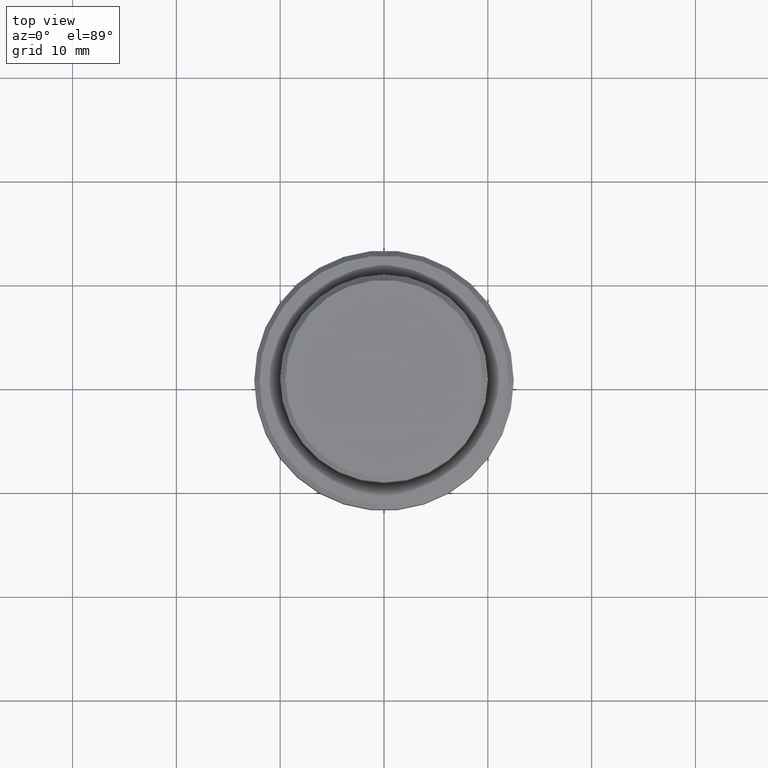
[diagram: clean part render]
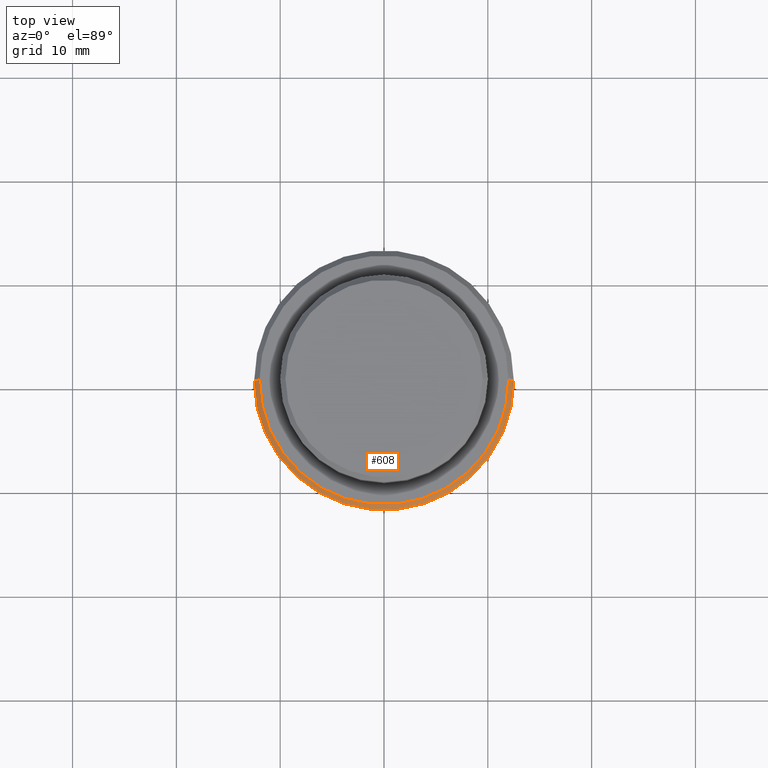
[diagram: same view with one face highlighted and labeled with its STEP entity id]
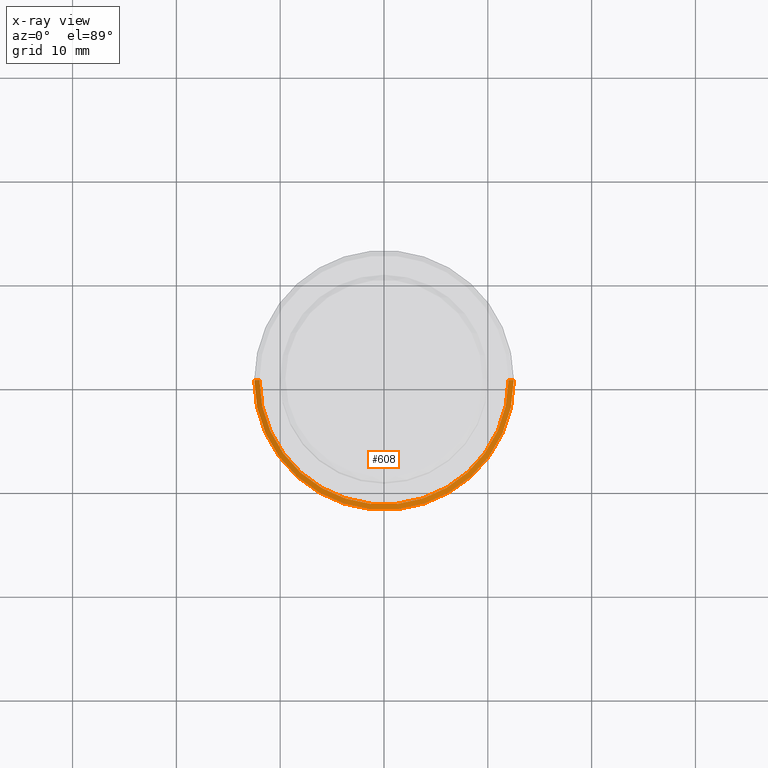
[diagram: x-ray of the same camera — body ghosted, the highlighted face saturated]
A machine part, top view. The second image highlights one B-rep face of the part: STEP entity #608.
The next image is the same camera in x-ray: the body ghosted, the highlighted face saturated — about 0% of this face is hidden behind the body in this view.
In plain terms, the highlighted conical surface has half-angle 45 deg.
Its self-contained STEP definition (entity closure, byte-faithful):
#36 = FACE_OUTER_BOUND ( 'NONE', #1233, .T. ) ;
#70 = DIRECTION ( 'NONE',  ( 1.000000000000000000, 0.000000000000000000, 0.000000000000000000 ) ) ;
#163 = CIRCLE ( 'NONE', #1377, 12.50000000000000000 ) ;
#168 = CARTESIAN_POINT ( 'NONE',  ( 0.000000000000000000, 0.000000000000000000, -9.500000000000000000 ) ) ;
#221 = CARTESIAN_POINT ( 'NONE',  ( 0.000000000000000000, 0.000000000000000000, -9.000000000000001776 ) ) ;
#223 = AXIS2_PLACEMENT_3D ( 'NONE', #1359, #475, #275 ) ;
#235 = DIRECTION ( 'NONE',  ( 0.7071067811865462405, 8.659560562354918067E-17, -0.7071067811865489050 ) ) ;
#272 = AXIS2_PLACEMENT_3D ( 'NONE', #221, #996, #352 ) ;
#275 = DIRECTION ( 'NONE',  ( 1.000000000000000000, 0.000000000000000000, 0.000000000000000000 ) ) ;
#331 = LINE ( 'NONE', #803, #859 ) ;
#352 = DIRECTION ( 'NONE',  ( -1.000000000000000000, 0.000000000000000000, 0.000000000000000000 ) ) ;
#369 = EDGE_CURVE ( 'NONE', #849, #474, #163, .T. ) ;
#387 = CARTESIAN_POINT ( 'NONE',  ( 12.50000000000000000, 0.000000000000000000, -9.500000000000000000 ) ) ;
#466 = LINE ( 'NONE', #1324, #1093 ) ;
#474 = VERTEX_POINT ( 'NONE', #1401 ) ;
#475 = DIRECTION ( 'NONE',  ( -0.000000000000000000, -0.000000000000000000, 1.000000000000000000 ) ) ;
#477 = DIRECTION ( 'NONE',  ( 0.000000000000000000, 0.000000000000000000, -1.000000000000000000 ) ) ;
#479 = CIRCLE ( 'NONE', #223, 12.00000000000000355 ) ;
#578 = CARTESIAN_POINT ( 'NONE',  ( -12.00000000000000355, 0.000000000000000000, -9.000000000000001776 ) ) ;
#606 = CONICAL_SURFACE ( 'NONE', #272, 12.00000000000000355, 0.7853981633974465026 ) ;
#608 = ADVANCED_FACE ( 'NONE', ( #36 ), #606, .T. ) ;
#611 = EDGE_CURVE ( 'NONE', #741, #474, #466, .T. ) ;
#642 = ORIENTED_EDGE ( 'NONE', *, *, #369, .F. ) ;
#718 = VERTEX_POINT ( 'NONE', #1215 ) ;
#741 = VERTEX_POINT ( 'NONE', #578 ) ;
#803 = CARTESIAN_POINT ( 'NONE',  ( 12.00000000000000355, 1.469576158976824342E-15, -9.000000000000001776 ) ) ;
#849 = VERTEX_POINT ( 'NONE', #387 ) ;
#859 = VECTOR ( 'NONE', #235, 999.9999999999998863 ) ;
#900 = ORIENTED_EDGE ( 'NONE', *, *, #1161, .F. ) ;
#996 = DIRECTION ( 'NONE',  ( 0.000000000000000000, 0.000000000000000000, -1.000000000000000000 ) ) ;
#1093 = VECTOR ( 'NONE', #1118, 999.9999999999998863 ) ;
#1109 = EDGE_CURVE ( 'NONE', #718, #849, #331, .T. ) ;
#1118 = DIRECTION ( 'NONE',  ( -0.7071067811865462405, 0.000000000000000000, -0.7071067811865489050 ) ) ;
#1161 = EDGE_CURVE ( 'NONE', #741, #718, #479, .T. ) ;
#1215 = CARTESIAN_POINT ( 'NONE',  ( 12.00000000000000355, 1.500192328955507734E-15, -9.000000000000001776 ) ) ;
#1233 = EDGE_LOOP ( 'NONE', ( #1267, #900, #1361, #642 ) ) ;
#1267 = ORIENTED_EDGE ( 'NONE', *, *, #1109, .F. ) ;
#1324 = CARTESIAN_POINT ( 'NONE',  ( -12.00000000000000355, 0.000000000000000000, -9.000000000000001776 ) ) ;
#1359 = CARTESIAN_POINT ( 'NONE',  ( 0.000000000000000000, 0.000000000000000000, -9.000000000000001776 ) ) ;
#1361 = ORIENTED_EDGE ( 'NONE', *, *, #611, .T. ) ;
#1377 = AXIS2_PLACEMENT_3D ( 'NONE', #168, #477, #70 ) ;
#1401 = CARTESIAN_POINT ( 'NONE',  ( -12.50000000000000000, 1.530808498934191521E-15, -9.500000000000000000 ) ) ;